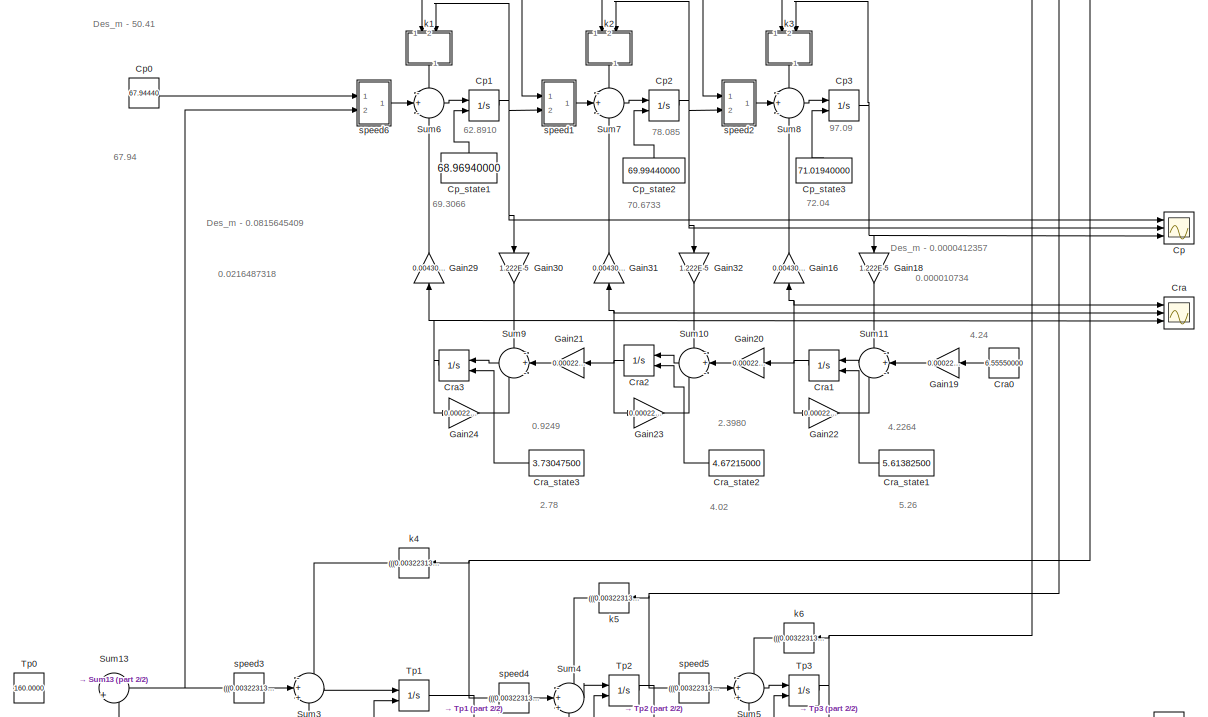
[diagram: root canvas - part 1/2, full width, middle band]
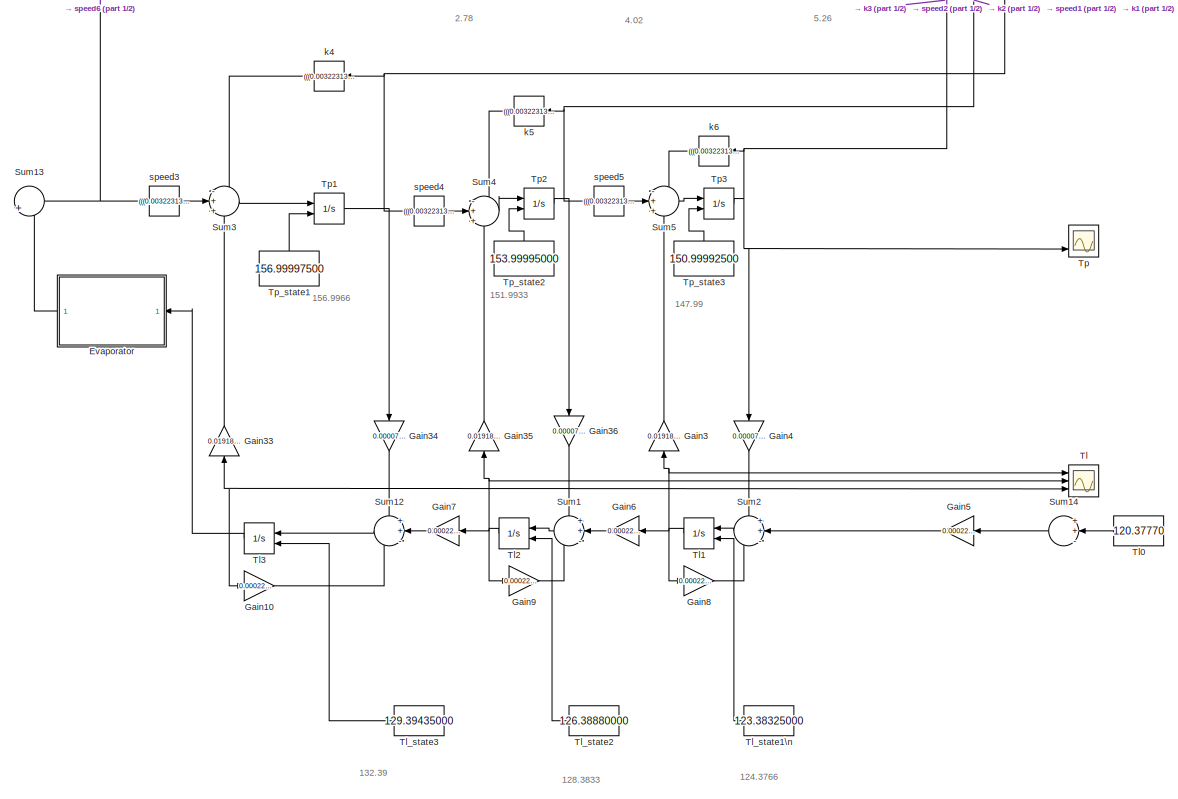
[diagram: root canvas - part 2/2, full width, bottom band]
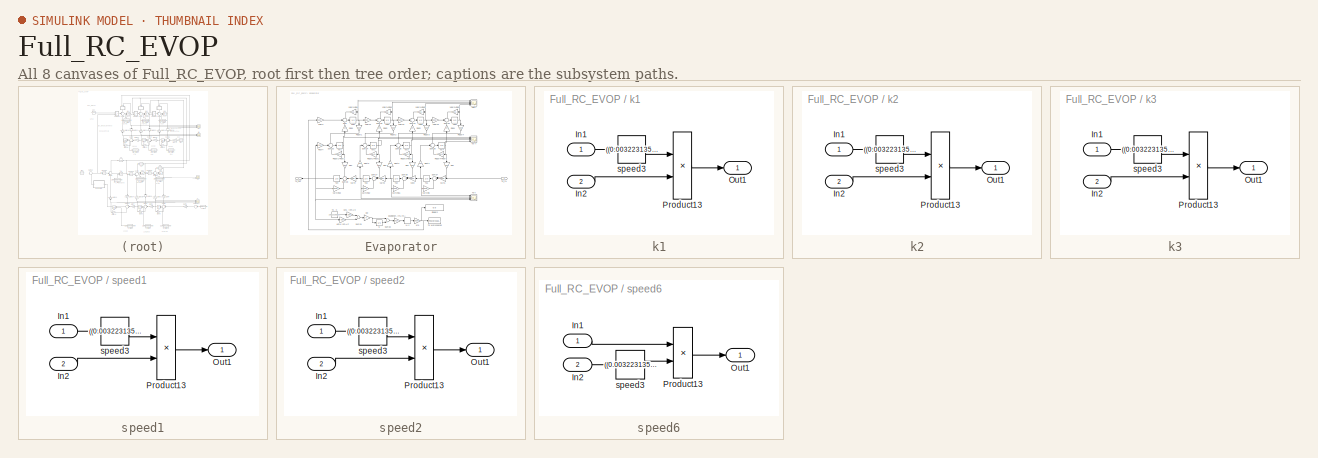
[diagram: thumbnail index - all 8 canvases of the model, root first then tree order]
MODEL Full_RC_EVOP
KIND model
BLOCK [Scope] Cp
  Floating = off
  NumInputPorts = 3
  Ports = [3]
  SID = 236
  ScopeSpecificationString = C++SS(StrPVP('Location','[5, 49, 1371, 737]'),StrPVP('Open','off'),StrPVP('ZoomMode','xonly'),MxPVP('AxesTitles',53,'struct(''axes1'',''%<SignalLabel>'',''axes2'',''%<SignalLabel>'',''axes3'',''%<SignalLabel>'')'),MxPVP('ScopeGraphics',56,'struct(''FigureColor'',''[0.501960784313725 0.501960784313725 0.501960784313725]'',''AxesColor'',''[0 0 0]'',''AxesTickColor'',''[1 1 1]'',''LineColors'',''[1 1...<+468ch>
BLOCK [Constant] Cp0
  SID = 237
  Value = 67.94440
BLOCK [Integrator] Cp1
  InitialCondition = 69.3066
  InitialConditionSource = external
  Ports = [2, 1]
  SID = 238
BLOCK [Integrator] Cp2
  InitialCondition = 70.6733
  InitialConditionSource = external
  Ports = [2, 1]
  SID = 239
BLOCK [Integrator] Cp3
  InitialCondition = 72.04
  InitialConditionSource = external
  Ports = [2, 1]
  SID = 240
BLOCK [Constant] Cp_state1
  SID = 443
  Value = 68.96940000
BLOCK [Constant] Cp_state2
  SID = 445
  Value = 69.99440000
BLOCK [Constant] Cp_state3
  SID = 446
  Value = 71.01940000
BLOCK [Scope] Cra
  Floating = off
  NumInputPorts = 3
  Ports = [3]
  SID = 241
  ScopeSpecificationString = C++SS(StrPVP('Location','[5, 49, 1371, 737]'),StrPVP('Open','off'),StrPVP('ZoomMode','xonly'),MxPVP('AxesTitles',53,'struct(''axes1'',''%<SignalLabel>'',''axes2'',''%<SignalLabel>'',''axes3'',''%<SignalLabel>'')'),MxPVP('ScopeGraphics',56,'struct(''FigureColor'',''[0.5 0.5 0.5]'',''AxesColor'',''[0 0 0]'',''AxesTickColor'',''[1 1 1]'',''LineColors'',''[1 1 0;1 0 1;0 1 1;1 0 0;0 1 0;0 0 1]'',''Line...<+439ch>
BLOCK [Constant] Cra0
  SID = 242
  Value = 6.55550000
BLOCK [Integrator] Cra1
  InitialCondition = 5.26
  InitialConditionSource = external
  Ports = [2, 1]
  SID = 243
BLOCK [Integrator] Cra2
  InitialCondition = 4.02
  InitialConditionSource = external
  Ports = [2, 1]
  SID = 244
BLOCK [Integrator] Cra3
  InitialCondition = 2.78
  InitialConditionSource = external
  Ports = [2, 1]
  SID = 245
BLOCK [Constant] Cra_state1
  SID = 449
  Value = 5.61382500
BLOCK [Constant] Cra_state2
  SID = 450
  Value = 4.67215000
BLOCK [Constant] Cra_state3
  SID = 451
  Value = 3.73047500
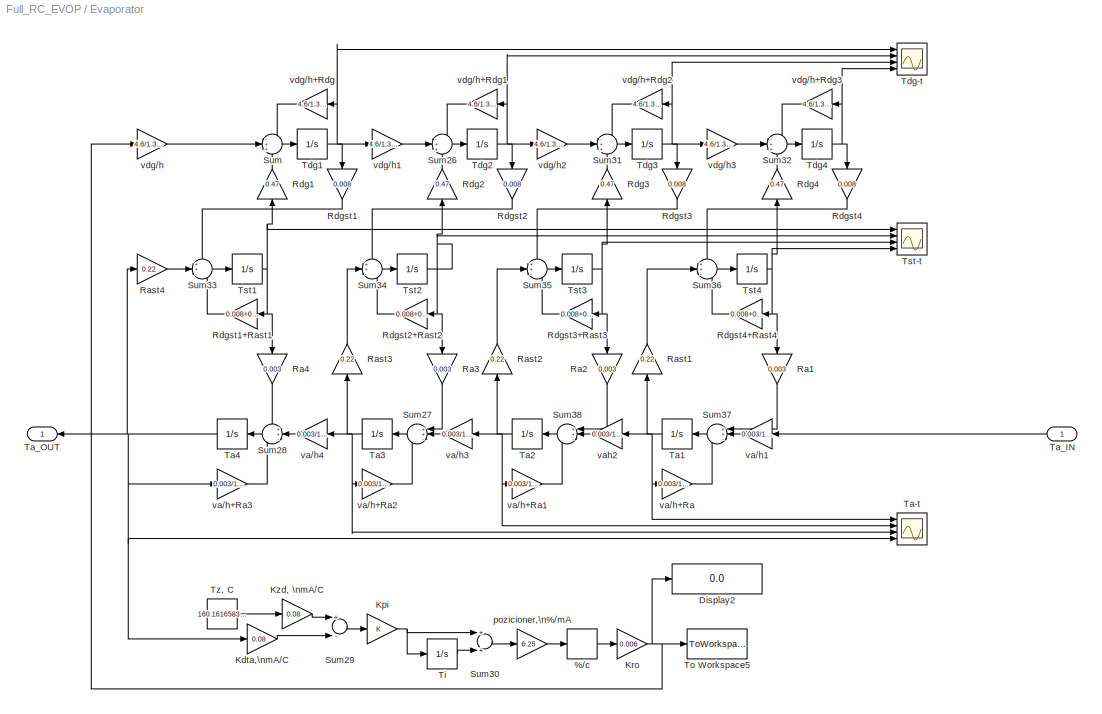
BLOCK [SubSystem] Evaporator
  Ports = [1, 1]
  RequestExecContextInheritance = off
  SID = 246
BLOCK [RateLimiter] Evaporator/%//c
  FallingSlewLimit = -5
  RisingSlewLimit = 5
  SID = 248
  SampleTimeMode = inherited
BLOCK [Display] Evaporator/Display2
  Decimation = 1
  Ports = [1]
  SID = 249
BLOCK [Gain] Evaporator/Kdta,\nmA//C
  Gain = 0.08
  OutDataTypeStr = Inherit: Inherit via internal rule
  ParamDataTypeStr = Inherit: Inherit via internal rule
  SID = 250
  SaturateOnIntegerOverflow = off
BLOCK [Gain] Evaporator/Kpi
  OutDataTypeStr = Inherit: Inherit via internal rule
  ParamDataTypeStr = Inherit: Inherit via internal rule
  SID = 251
  SaturateOnIntegerOverflow = off
BLOCK [Gain] Evaporator/Kro
  Gain = 0.006
  OutDataTypeStr = Inherit: Inherit via internal rule
  ParamDataTypeStr = Inherit: Inherit via internal rule
  SID = 252
  SaturateOnIntegerOverflow = off
BLOCK [Gain] Evaporator/Kzd, \nmA//C
  Gain = 0.08
  OutDataTypeStr = Inherit: Inherit via internal rule
  ParamDataTypeStr = Inherit: Inherit via internal rule
  SID = 253
  SaturateOnIntegerOverflow = off
BLOCK [Gain] Evaporator/Ra1
  Gain = 0.003
  OutDataTypeStr = Inherit: Inherit via internal rule
  ParamDataTypeStr = Inherit: Inherit via internal rule
  SID = 254
  SaturateOnIntegerOverflow = off
BLOCK [Gain] Evaporator/Ra2
  Gain = 0.003
  OutDataTypeStr = Inherit: Inherit via internal rule
  ParamDataTypeStr = Inherit: Inherit via internal rule
  SID = 255
  SaturateOnIntegerOverflow = off
BLOCK [Gain] Evaporator/Ra3
  Gain = 0.003
  OutDataTypeStr = Inherit: Inherit via internal rule
  ParamDataTypeStr = Inherit: Inherit via internal rule
  SID = 256
  SaturateOnIntegerOverflow = off
BLOCK [Gain] Evaporator/Ra4
  Gain = 0.003
  OutDataTypeStr = Inherit: Inherit via internal rule
  ParamDataTypeStr = Inherit: Inherit via internal rule
  SID = 257
  SaturateOnIntegerOverflow = off
BLOCK [Gain] Evaporator/Rast1
  Gain = 0.22
  OutDataTypeStr = Inherit: Inherit via internal rule
  ParamDataTypeStr = Inherit: Inherit via internal rule
  SID = 258
  SaturateOnIntegerOverflow = off
BLOCK [Gain] Evaporator/Rast2
  Gain = 0.22
  OutDataTypeStr = Inherit: Inherit via internal rule
  ParamDataTypeStr = Inherit: Inherit via internal rule
  SID = 259
  SaturateOnIntegerOverflow = off
BLOCK [Gain] Evaporator/Rast3
  Gain = 0.22
  OutDataTypeStr = Inherit: Inherit via internal rule
  ParamDataTypeStr = Inherit: Inherit via internal rule
  SID = 260
  SaturateOnIntegerOverflow = off
BLOCK [Gain] Evaporator/Rast4
  Gain = 0.22
  OutDataTypeStr = Inherit: Inherit via internal rule
  ParamDataTypeStr = Inherit: Inherit via internal rule
  SID = 261
  SaturateOnIntegerOverflow = off
BLOCK [Gain] Evaporator/Rdg1
  Gain = 0.47
  OutDataTypeStr = Inherit: Inherit via internal rule
  ParamDataTypeStr = Inherit: Inherit via internal rule
  SID = 262
  SaturateOnIntegerOverflow = off
BLOCK [Gain] Evaporator/Rdg2
  Gain = 0.47
  OutDataTypeStr = Inherit: Inherit via internal rule
  ParamDataTypeStr = Inherit: Inherit via internal rule
  SID = 263
  SaturateOnIntegerOverflow = off
BLOCK [Gain] Evaporator/Rdg3
  Gain = 0.47
  OutDataTypeStr = Inherit: Inherit via internal rule
  ParamDataTypeStr = Inherit: Inherit via internal rule
  SID = 264
  SaturateOnIntegerOverflow = off
BLOCK [Gain] Evaporator/Rdg4
  Gain = 0.47
  OutDataTypeStr = Inherit: Inherit via internal rule
  ParamDataTypeStr = Inherit: Inherit via internal rule
  SID = 265
  SaturateOnIntegerOverflow = off
BLOCK [Gain] Evaporator/Rdgst1
  Gain = 0.008
  OutDataTypeStr = Inherit: Inherit via internal rule
  ParamDataTypeStr = Inherit: Inherit via internal rule
  SID = 266
  SaturateOnIntegerOverflow = off
BLOCK [Gain] Evaporator/Rdgst1+Rast1
  Gain = 0.008+0.22
  OutDataTypeStr = Inherit: Inherit via internal rule
  ParamDataTypeStr = Inherit: Inherit via internal rule
  SID = 267
  SaturateOnIntegerOverflow = off
BLOCK [Gain] Evaporator/Rdgst2
  Gain = 0.008
  OutDataTypeStr = Inherit: Inherit via internal rule
  ParamDataTypeStr = Inherit: Inherit via internal rule
  SID = 268
  SaturateOnIntegerOverflow = off
BLOCK [Gain] Evaporator/Rdgst2+Rast2
  Gain = 0.008+0.22
  OutDataTypeStr = Inherit: Inherit via internal rule
  ParamDataTypeStr = Inherit: Inherit via internal rule
  SID = 269
  SaturateOnIntegerOverflow = off
BLOCK [Gain] Evaporator/Rdgst3
  Gain = 0.008
  OutDataTypeStr = Inherit: Inherit via internal rule
  ParamDataTypeStr = Inherit: Inherit via internal rule
  SID = 270
  SaturateOnIntegerOverflow = off
BLOCK [Gain] Evaporator/Rdgst3+Rast3
  Gain = 0.008+0.22
  OutDataTypeStr = Inherit: Inherit via internal rule
  ParamDataTypeStr = Inherit: Inherit via internal rule
  SID = 271
  SaturateOnIntegerOverflow = off
BLOCK [Gain] Evaporator/Rdgst4
  Gain = 0.008
  OutDataTypeStr = Inherit: Inherit via internal rule
  ParamDataTypeStr = Inherit: Inherit via internal rule
  SID = 272
  SaturateOnIntegerOverflow = off
BLOCK [Gain] Evaporator/Rdgst4+Rast4
  Gain = 0.008+0.22
  OutDataTypeStr = Inherit: Inherit via internal rule
  ParamDataTypeStr = Inherit: Inherit via internal rule
  SID = 273
  SaturateOnIntegerOverflow = off
BLOCK [Sum] Evaporator/Sum
  IconShape = round
  InputSameDT = off
  Inputs = -++
  OutDataTypeStr = Inherit: Inherit via internal rule
  Ports = [3, 1]
  SID = 274
  SaturateOnIntegerOverflow = off
BLOCK [Sum] Evaporator/Sum26
  IconShape = round
  InputSameDT = off
  Inputs = -++
  OutDataTypeStr = Inherit: Inherit via internal rule
  Ports = [3, 1]
  SID = 275
  SaturateOnIntegerOverflow = off
BLOCK [Sum] Evaporator/Sum27
  IconShape = round
  InputSameDT = off
  Inputs = ++-
  OutDataTypeStr = Inherit: Inherit via internal rule
  Ports = [3, 1]
  SID = 276
  SaturateOnIntegerOverflow = off
BLOCK [Sum] Evaporator/Sum28
  IconShape = round
  InputSameDT = off
  Inputs = ++-
  OutDataTypeStr = Inherit: Inherit via internal rule
  Ports = [3, 1]
  SID = 277
  SaturateOnIntegerOverflow = off
BLOCK [Sum] Evaporator/Sum29
  InputSameDT = off
  Inputs = +-
  OutDataTypeStr = Inherit: Inherit via internal rule
  Ports = [2, 1]
  SID = 278
  SaturateOnIntegerOverflow = off
BLOCK [Sum] Evaporator/Sum30
  InputSameDT = off
  OutDataTypeStr = Inherit: Inherit via internal rule
  Ports = [2, 1]
  SID = 279
  SaturateOnIntegerOverflow = off
BLOCK [Sum] Evaporator/Sum31
  IconShape = round
  InputSameDT = off
  Inputs = -++
  OutDataTypeStr = Inherit: Inherit via internal rule
  Ports = [3, 1]
  SID = 280
  SaturateOnIntegerOverflow = off
BLOCK [Sum] Evaporator/Sum32
  IconShape = round
  InputSameDT = off
  Inputs = -++
  OutDataTypeStr = Inherit: Inherit via internal rule
  Ports = [3, 1]
  SID = 281
  SaturateOnIntegerOverflow = off
BLOCK [Sum] Evaporator/Sum33
  IconShape = round
  InputSameDT = off
  Inputs = ++-
  OutDataTypeStr = Inherit: Inherit via internal rule
  Ports = [3, 1]
  SID = 282
  SaturateOnIntegerOverflow = off
BLOCK [Sum] Evaporator/Sum34
  IconShape = round
  InputSameDT = off
  Inputs = ++-
  OutDataTypeStr = Inherit: Inherit via internal rule
  Ports = [3, 1]
  SID = 283
  SaturateOnIntegerOverflow = off
BLOCK [Sum] Evaporator/Sum35
  IconShape = round
  InputSameDT = off
  Inputs = ++-
  OutDataTypeStr = Inherit: Inherit via internal rule
  Ports = [3, 1]
  SID = 284
  SaturateOnIntegerOverflow = off
BLOCK [Sum] Evaporator/Sum36
  IconShape = round
  InputSameDT = off
  Inputs = ++-
  OutDataTypeStr = Inherit: Inherit via internal rule
  Ports = [3, 1]
  SID = 285
  SaturateOnIntegerOverflow = off
BLOCK [Sum] Evaporator/Sum37
  IconShape = round
  InputSameDT = off
  Inputs = ++-
  OutDataTypeStr = Inherit: Inherit via internal rule
  Ports = [3, 1]
  SID = 286
  SaturateOnIntegerOverflow = off
BLOCK [Sum] Evaporator/Sum38
  IconShape = round
  InputSameDT = off
  Inputs = ++-
  OutDataTypeStr = Inherit: Inherit via internal rule
  Ports = [3, 1]
  SID = 287
  SaturateOnIntegerOverflow = off
BLOCK [Scope] Evaporator/Ta-t
  Floating = off
  NumInputPorts = 4
  Ports = [4]
  SID = 288
  ScopeSpecificationString = C++SS(StrPVP('Location','[999, 167, 1323, 671]'),StrPVP('Open','off'),MxPVP('AxesTitles',53,'struct(''axes1'',''%<SignalLabel>'',''axes2'',''%<SignalLabel>'',''axes3'',''%<SignalLabel>'',''axes4'',''%<SignalLabel>'')'),MxPVP('ScopeGraphics',56,'struct(''FigureColor'',''[0.5 0.5 0.5]'',''AxesColor'',''[0 0 0]'',''AxesTickColor'',''[1 1 1]'',''LineColors'',''[1 1 0;1 0 1;0 1 1;1 0 0;0 1 0;0 0 1]'','...<+421ch>
BLOCK [Integrator] Evaporator/Ta1
  InitialCondition = 136.285
  Ports = [1, 1]
  SID = 289
BLOCK [Integrator] Evaporator/Ta2
  InitialCondition = 144.19
  Ports = [1, 1]
  SID = 290
BLOCK [Integrator] Evaporator/Ta3
  InitialCondition = 152.09
  Ports = [1, 1]
  SID = 291
BLOCK [Integrator] Evaporator/Ta4
  InitialCondition = 160
  Ports = [1, 1]
  SID = 292
BLOCK [Inport] Evaporator/Ta_IN
  IconDisplay = Port number
  SID = 247
BLOCK [Outport] Evaporator/Ta_OUT
  IconDisplay = Port number
  SID = 323
BLOCK [Scope] Evaporator/Tdg-t
  Floating = off
  NumInputPorts = 4
  Ports = [4]
  SID = 293
  ScopeSpecificationString = C++SS(StrPVP('Location','[886, 169, 1210, 673]'),StrPVP('Open','off'),MxPVP('AxesTitles',53,'struct(''axes1'',''%<SignalLabel>'',''axes2'',''%<SignalLabel>'',''axes3'',''%<SignalLabel>'',''axes4'',''%<SignalLabel>'')'),MxPVP('ScopeGraphics',56,'struct(''FigureColor'',''[0.5 0.5 0.5]'',''AxesColor'',''[0 0 0]'',''AxesTickColor'',''[1 1 1]'',''LineColors'',''[1 1 0;1 0 1;0 1 1;1 0 0;0 1 0;0 0 1]'','...<+415ch>
BLOCK [Integrator] Evaporator/Tdg1
  InitialCondition = 283.3065209436467
  Ports = [1, 1]
  SID = 294
BLOCK [Integrator] Evaporator/Tdg2
  InitialCondition = 267.8966165589237
  Ports = [1, 1]
  SID = 295
BLOCK [Integrator] Evaporator/Tdg3
  InitialCondition = 253.6715917846216
  Ports = [1, 1]
  SID = 296
BLOCK [Integrator] Evaporator/Tdg4
  InitialCondition = 240.5403403000344
  Ports = [1, 1]
  SID = 297
BLOCK [Integrator] Evaporator/Ti
  InitialCondition = 8000
  LowerSaturationLimit = 6012
  Ports = [1, 1]
  SID = 298
  UpperSaturationLimit = 8012
BLOCK [ToWorkspace] Evaporator/To Workspace5
  MaxDataPoints = inf
  Ports = [1]
  SID = 299
  SampleTime = -1
  VariableName = Tdg0
BLOCK [Scope] Evaporator/Tst-t
  Floating = off
  NumInputPorts = 4
  Ports = [4]
  SID = 300
  ScopeSpecificationString = C++SS(StrPVP('Location','[368, 90, 692, 594]'),StrPVP('Open','off'),MxPVP('AxesTitles',53,'struct(''axes1'',''%<SignalLabel>'',''axes2'',''%<SignalLabel>'',''axes3'',''%<SignalLabel>'',''axes4'',''%<SignalLabel>'')'),MxPVP('ScopeGraphics',56,'struct(''FigureColor'',''[0.5 0.5 0.5]'',''AxesColor'',''[0 0 0]'',''AxesTickColor'',''[1 1 1]'',''LineColors'',''[1 1 0;1 0 1;0 1 1;1 0 0;0 1 0;0 0 1]'',''L...<+413ch>
BLOCK [Integrator] Evaporator/Tst1
  InitialCondition = 164.4825307550351
  Ports = [1, 1]
  SID = 301
BLOCK [Integrator] Evaporator/Tst2
  InitialCondition = 158.2090959868120
  Ports = [1, 1]
  SID = 302
BLOCK [Integrator] Evaporator/Tst3
  InitialCondition = 152.4180305285302
  Ports = [1, 1]
  SID = 303
BLOCK [Integrator] Evaporator/Tst4
  InitialCondition = 147.0722446263660
  Ports = [1, 1]
  SID = 304
BLOCK [Constant] Evaporator/Tz, C
  SID = 305
  Value = 160.1616583845354
BLOCK [Gain] Evaporator/pozicioner,\n%//mA
  Gain = 6.25
  OutDataTypeStr = Inherit: Inherit via internal rule
  ParamDataTypeStr = Inherit: Inherit via internal rule
  SID = 306
  SaturateOnIntegerOverflow = off
BLOCK [Gain] Evaporator/va//h+Ra
  Gain = 0.003/1.375+0.003
  OutDataTypeStr = Inherit: Inherit via internal rule
  ParamDataTypeStr = Inherit: Inherit via internal rule
  SID = 307
  SaturateOnIntegerOverflow = off
BLOCK [Gain] Evaporator/va//h+Ra1
  Gain = 0.003/1.375+0.003
  OutDataTypeStr = Inherit: Inherit via internal rule
  ParamDataTypeStr = Inherit: Inherit via internal rule
  SID = 308
  SaturateOnIntegerOverflow = off
BLOCK [Gain] Evaporator/va//h+Ra2
  Gain = 0.003/1.375+0.003
  OutDataTypeStr = Inherit: Inherit via internal rule
  ParamDataTypeStr = Inherit: Inherit via internal rule
  SID = 309
  SaturateOnIntegerOverflow = off
BLOCK [Gain] Evaporator/va//h+Ra3
  Gain = 0.003/1.375+0.003
  OutDataTypeStr = Inherit: Inherit via internal rule
  ParamDataTypeStr = Inherit: Inherit via internal rule
  SID = 310
  SaturateOnIntegerOverflow = off
BLOCK [Gain] Evaporator/va//h1
  Gain = 0.003/1.375
  OutDataTypeStr = Inherit: Inherit via internal rule
  ParamDataTypeStr = Inherit: Inherit via internal rule
  SID = 311
  SaturateOnIntegerOverflow = off
BLOCK [Gain] Evaporator/va//h3
  Gain = 0.003/1.375
  OutDataTypeStr = Inherit: Inherit via internal rule
  ParamDataTypeStr = Inherit: Inherit via internal rule
  SID = 312
  SaturateOnIntegerOverflow = off
BLOCK [Gain] Evaporator/va//h4
  Gain = 0.003/1.375
  OutDataTypeStr = Inherit: Inherit via internal rule
  ParamDataTypeStr = Inherit: Inherit via internal rule
  SID = 313
  SaturateOnIntegerOverflow = off
BLOCK [Gain] Evaporator/vah2
  Gain = 0.003/1.375
  OutDataTypeStr = Inherit: Inherit via internal rule
  ParamDataTypeStr = Inherit: Inherit via internal rule
  SID = 314
  SaturateOnIntegerOverflow = off
BLOCK [Gain] Evaporator/vdg//h
  Gain = 4.6/1.375
  OutDataTypeStr = Inherit: Inherit via internal rule
  ParamDataTypeStr = Inherit: Inherit via internal rule
  SID = 315
  SaturateOnIntegerOverflow = off
BLOCK [Gain] Evaporator/vdg//h+Rdg
  Gain = 4.6/1.375+0.47
  OutDataTypeStr = Inherit: Inherit via internal rule
  ParamDataTypeStr = Inherit: Inherit via internal rule
  SID = 316
  SaturateOnIntegerOverflow = off
BLOCK [Gain] Evaporator/vdg//h+Rdg1
  Gain = 4.6/1.375+0.47
  OutDataTypeStr = Inherit: Inherit via internal rule
  ParamDataTypeStr = Inherit: Inherit via internal rule
  SID = 317
  SaturateOnIntegerOverflow = off
BLOCK [Gain] Evaporator/vdg//h+Rdg2
  Gain = 4.6/1.375+0.47
  OutDataTypeStr = Inherit: Inherit via internal rule
  ParamDataTypeStr = Inherit: Inherit via internal rule
  SID = 318
  SaturateOnIntegerOverflow = off
BLOCK [Gain] Evaporator/vdg//h+Rdg3
  Gain = 4.6/1.375+0.47
  OutDataTypeStr = Inherit: Inherit via internal rule
  ParamDataTypeStr = Inherit: Inherit via internal rule
  SID = 319
  SaturateOnIntegerOverflow = off
BLOCK [Gain] Evaporator/vdg//h1
  Gain = 4.6/1.375
  OutDataTypeStr = Inherit: Inherit via internal rule
  ParamDataTypeStr = Inherit: Inherit via internal rule
  SID = 320
  SaturateOnIntegerOverflow = off
BLOCK [Gain] Evaporator/vdg//h2
  Gain = 4.6/1.375
  OutDataTypeStr = Inherit: Inherit via internal rule
  ParamDataTypeStr = Inherit: Inherit via internal rule
  SID = 321
  SaturateOnIntegerOverflow = off
BLOCK [Gain] Evaporator/vdg//h3
  Gain = 4.6/1.375
  OutDataTypeStr = Inherit: Inherit via internal rule
  ParamDataTypeStr = Inherit: Inherit via internal rule
  SID = 322
  SaturateOnIntegerOverflow = off
BLOCK [Gain] Gain10
  Gain = 0.0002291314/0.5+0.0000777
  OutDataTypeStr = Inherit: Inherit via internal rule
  ParamDataTypeStr = Inherit: Inherit via internal rule
  SID = 326
  SaturateOnIntegerOverflow = off
BLOCK [Gain] Gain16
  Gain = 0.004302*10^(-9)
  OutDataTypeStr = Inherit: Inherit via internal rule
  ParamDataTypeStr = Inherit: Inherit via internal rule
  SID = 327
  SaturateOnIntegerOverflow = off
BLOCK [Gain] Gain18
  Gain = 1.222E-5
  OutDataTypeStr = Inherit: Inherit via internal rule
  ParamDataTypeStr = Inherit: Inherit via internal rule
  SID = 328
  SaturateOnIntegerOverflow = off
BLOCK [Gain] Gain19
  Gain = 0.0002291314/0.5
  OutDataTypeStr = Inherit: Inherit via internal rule
  ParamDataTypeStr = Inherit: Inherit via internal rule
  SID = 329
  SaturateOnIntegerOverflow = off
BLOCK [Gain] Gain20
  Gain = 0.0002291314/0.5
  OutDataTypeStr = Inherit: Inherit via internal rule
  ParamDataTypeStr = Inherit: Inherit via internal rule
  SID = 330
  SaturateOnIntegerOverflow = off
BLOCK [Gain] Gain21
  Gain = 0.0002291314/0.5
  OutDataTypeStr = Inherit: Inherit via internal rule
  ParamDataTypeStr = Inherit: Inherit via internal rule
  SID = 331
  SaturateOnIntegerOverflow = off
BLOCK [Gain] Gain22
  Gain = 0.0002291314/0.5-(1.222E-5)*10^(-9)
  OutDataTypeStr = Inherit: Inherit via internal rule
  ParamDataTypeStr = Inherit: Inherit via internal rule
  SID = 332
  SaturateOnIntegerOverflow = off
BLOCK [Gain] Gain23
  Gain = 0.0002291314/0.5-(1.222E-5)*10^(-9)
  OutDataTypeStr = Inherit: Inherit via internal rule
  ParamDataTypeStr = Inherit: Inherit via internal rule
  SID = 333
  SaturateOnIntegerOverflow = off
BLOCK [Gain] Gain24
  Gain = 0.0002291314/0.5-(1.222E-5)*10^(-9)
  OutDataTypeStr = Inherit: Inherit via internal rule
  ParamDataTypeStr = Inherit: Inherit via internal rule
  SID = 334
  SaturateOnIntegerOverflow = off
BLOCK [Gain] Gain29
  Gain = 0.004302*10^(-9)
  OutDataTypeStr = Inherit: Inherit via internal rule
  ParamDataTypeStr = Inherit: Inherit via internal rule
  SID = 335
  SaturateOnIntegerOverflow = off
BLOCK [Gain] Gain3
  Gain = 0.0191806
  OutDataTypeStr = Inherit: Inherit via internal rule
  ParamDataTypeStr = Inherit: Inherit via internal rule
  SID = 336
  SaturateOnIntegerOverflow = off
BLOCK [Gain] Gain30
  Gain = 1.222E-5
  OutDataTypeStr = Inherit: Inherit via internal rule
  ParamDataTypeStr = Inherit: Inherit via internal rule
  SID = 337
  SaturateOnIntegerOverflow = off
BLOCK [Gain] Gain31
  Gain = 0.004302*10^(-9)
  OutDataTypeStr = Inherit: Inherit via internal rule
  ParamDataTypeStr = Inherit: Inherit via internal rule
  SID = 338
  SaturateOnIntegerOverflow = off
BLOCK [Gain] Gain32
  Gain = 1.222E-5
  OutDataTypeStr = Inherit: Inherit via internal rule
  ParamDataTypeStr = Inherit: Inherit via internal rule
  SID = 339
  SaturateOnIntegerOverflow = off
BLOCK [Gain] Gain33
  Gain = 0.0191806
  OutDataTypeStr = Inherit: Inherit via internal rule
  ParamDataTypeStr = Inherit: Inherit via internal rule
  SID = 340
  SaturateOnIntegerOverflow = off
BLOCK [Gain] Gain34
  Gain = 0.0000777
  OutDataTypeStr = Inherit: Inherit via internal rule
  ParamDataTypeStr = Inherit: Inherit via internal rule
  SID = 341
  SaturateOnIntegerOverflow = off
BLOCK [Gain] Gain35
  Gain = 0.0191806
  OutDataTypeStr = Inherit: Inherit via internal rule
  ParamDataTypeStr = Inherit: Inherit via internal rule
  SID = 342
  SaturateOnIntegerOverflow = off
BLOCK [Gain] Gain36
  Gain = 0.0000777
  OutDataTypeStr = Inherit: Inherit via internal rule
  ParamDataTypeStr = Inherit: Inherit via internal rule
  SID = 343
  SaturateOnIntegerOverflow = off
BLOCK [Gain] Gain4
  Gain = 0.0000777
  OutDataTypeStr = Inherit: Inherit via internal rule
  ParamDataTypeStr = Inherit: Inherit via internal rule
  SID = 344
  SaturateOnIntegerOverflow = off
BLOCK [Gain] Gain5
  Gain = 0.0002291314/0.5
  OutDataTypeStr = Inherit: Inherit via internal rule
  ParamDataTypeStr = Inherit: Inherit via internal rule
  SID = 345
  SaturateOnIntegerOverflow = off
BLOCK [Gain] Gain6
  Gain = 0.0002291314/0.5
  OutDataTypeStr = Inherit: Inherit via internal rule
  ParamDataTypeStr = Inherit: Inherit via internal rule
  SID = 346
  SaturateOnIntegerOverflow = off
BLOCK [Gain] Gain7
  Gain = 0.0002291314/0.5
  OutDataTypeStr = Inherit: Inherit via internal rule
  ParamDataTypeStr = Inherit: Inherit via internal rule
  SID = 347
  SaturateOnIntegerOverflow = off
BLOCK [Gain] Gain8
  Gain = 0.0002291314/0.5+0.0000777
  OutDataTypeStr = Inherit: Inherit via internal rule
  ParamDataTypeStr = Inherit: Inherit via internal rule
  SID = 348
  SaturateOnIntegerOverflow = off
BLOCK [Gain] Gain9
  Gain = 0.0002291314/0.5+0.0000777
  OutDataTypeStr = Inherit: Inherit via internal rule
  ParamDataTypeStr = Inherit: Inherit via internal rule
  SID = 349
  SaturateOnIntegerOverflow = off
BLOCK [Sum] Sum1
  IconShape = round
  InputSameDT = off
  Inputs = ++-
  OutDataTypeStr = Inherit: Inherit via internal rule
  Ports = [3, 1]
  SID = 351
  SaturateOnIntegerOverflow = off
BLOCK [Sum] Sum10
  IconShape = round
  InputSameDT = off
  Inputs = -+-
  OutDataTypeStr = Inherit: Inherit via internal rule
  Ports = [3, 1]
  SID = 352
  SaturateOnIntegerOverflow = off
BLOCK [Sum] Sum11
  IconShape = round
  InputSameDT = off
  Inputs = -+-
  OutDataTypeStr = Inherit: Inherit via internal rule
  Ports = [3, 1]
  SID = 353
  SaturateOnIntegerOverflow = off
BLOCK [Sum] Sum12
  IconShape = round
  InputSameDT = off
  Inputs = ++-
  OutDataTypeStr = Inherit: Inherit via internal rule
  Ports = [3, 1]
  SID = 354
  SaturateOnIntegerOverflow = off
BLOCK [Sum] Sum13
  IconShape = round
  InputSameDT = off
  Inputs = |++
  OutDataTypeStr = Inherit: Inherit via internal rule
  Ports = [2, 1]
  SID = 355
  SaturateOnIntegerOverflow = off
BLOCK [Sum] Sum14
  IconShape = round
  InputSameDT = off
  Inputs = ++-
  OutDataTypeStr = Inherit: Inherit via internal rule
  Ports = [3, 1]
  SID = 356
  SaturateOnIntegerOverflow = off
BLOCK [Sum] Sum2
  IconShape = round
  InputSameDT = off
  Inputs = ++-
  OutDataTypeStr = Inherit: Inherit via internal rule
  Ports = [3, 1]
  SID = 358
  SaturateOnIntegerOverflow = off
BLOCK [Sum] Sum3
  IconShape = round
  InputSameDT = off
  Inputs = -++
  OutDataTypeStr = Inherit: Inherit via internal rule
  Ports = [3, 1]
  SID = 359
  SaturateOnIntegerOverflow = off
BLOCK [Sum] Sum4
  IconShape = round
  InputSameDT = off
  Inputs = -++
  OutDataTypeStr = Inherit: Inherit via internal rule
  Ports = [3, 1]
  SID = 360
  SaturateOnIntegerOverflow = off
BLOCK [Sum] Sum5
  IconShape = round
  InputSameDT = off
  Inputs = -++
  OutDataTypeStr = Inherit: Inherit via internal rule
  Ports = [3, 1]
  SID = 361
  SaturateOnIntegerOverflow = off
BLOCK [Sum] Sum6
  IconShape = round
  InputSameDT = off
  Inputs = -+-
  OutDataTypeStr = Inherit: Inherit via internal rule
  Ports = [3, 1]
  SID = 362
  SaturateOnIntegerOverflow = off
BLOCK [Sum] Sum7
  IconShape = round
  InputSameDT = off
  Inputs = -+-
  OutDataTypeStr = Inherit: Inherit via internal rule
  Ports = [3, 1]
  SID = 363
  SaturateOnIntegerOverflow = off
BLOCK [Sum] Sum8
  IconShape = round
  InputSameDT = off
  Inputs = -+-
  OutDataTypeStr = Inherit: Inherit via internal rule
  Ports = [3, 1]
  SID = 364
  SaturateOnIntegerOverflow = off
BLOCK [Sum] Sum9
  IconShape = round
  InputSameDT = off
  Inputs = -+-
  OutDataTypeStr = Inherit: Inherit via internal rule
  Ports = [3, 1]
  SID = 365
  SaturateOnIntegerOverflow = off
BLOCK [Scope] Tl
  Floating = off
  NumInputPorts = 3
  Ports = [3]
  SID = 366
  ScopeSpecificationString = Simulink.scopes.TimeScopeBlockCfg('CurrentConfiguration', extmgr.ConfigurationSet(extmgr.Configuration('Core','General UI',true),extmgr.Configuration('Core','Source UI',true),extmgr.Configuration('Sources','WiredSimulink',true,'DataLogging',true,'DataLoggingVariableName','TF_SM','DataLoggingSaveFormat','StructureWithTime','SampleTime','0','DataLoggingDecimation','1','DataLoggingDecimateData',true)...<+3051ch>
BLOCK [Constant] Tl0
  SID = 367
  Value = 120.37770
BLOCK [Integrator] Tl1
  InitialCondition = 124.3766
  InitialConditionSource = external
  Ports = [2, 1]
  SID = 368
BLOCK [Integrator] Tl2
  InitialCondition = 128.3833
  InitialConditionSource = external
  Ports = [2, 1]
  SID = 369
BLOCK [Integrator] Tl3
  InitialCondition = 132.39
  InitialConditionSource = external
  Ports = [2, 1]
  SID = 370
BLOCK [Constant] Tl_state1\n
  SID = 436
  Value = 123.38325000
BLOCK [Constant] Tl_state2
  SID = 437
  Value = 126.38880000
BLOCK [Constant] Tl_state3
  SID = 438
  Value = 129.39435000
BLOCK [Scope] Tp
  Floating = off
  NumInputPorts = 3
  Ports = [3]
  SID = 371
  ScopeSpecificationString = Simulink.scopes.TimeScopeBlockCfg('CurrentConfiguration', extmgr.ConfigurationSet(extmgr.Configuration('Core','General UI',true),extmgr.Configuration('Core','Source UI',true),extmgr.Configuration('Sources','WiredSimulink',true,'DataLogging',true,'DataLoggingVariableName','TV_SM','DataLoggingSaveFormat','StructureWithTime','SampleTime','0','DataLoggingDecimation','1','DataLoggingDecimateData',true)...<+3050ch>
BLOCK [Constant] Tp0
  SID = 372
  Value = 160.0000
BLOCK [Integrator] Tp1
  InitialCondition = 156.9966
  InitialConditionSource = external
  Ports = [2, 1]
  SID = 373
BLOCK [Integrator] Tp2
  InitialCondition = 151.9933
  InitialConditionSource = external
  Ports = [2, 1]
  SID = 374
BLOCK [Integrator] Tp3
  IgnoreLimit = on
  InitialCondition = 147.99
  InitialConditionSource = external
  Ports = [2, 1]
  SID = 375
BLOCK [Constant] Tp_state1
  SID = 428
  Value = 156.99997500
BLOCK [Constant] Tp_state2
  SID = 430
  Value = 153.99995000
BLOCK [Constant] Tp_state3
  SID = 431
  Value = 150.99992500
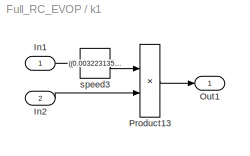
BLOCK [SubSystem] k1
  Ports = [2, 1]
  RequestExecContextInheritance = off
  SID = 376
BLOCK [Inport] k1/In1
  IconDisplay = Port number
  SID = 377
BLOCK [Inport] k1/In2
  IconDisplay = Port number
  Port = 2
  SID = 378
BLOCK [Outport] k1/Out1
  IconDisplay = Port number
  SID = 381
BLOCK [Product] k1/Product13
  Ports = [2, 1]
  RndMeth = Floor
  SID = 379
BLOCK [Fcn] k1/speed3
  Expr = ((0.003223135*(273+u))/24.69822264)/0.5-0.004302
  SID = 380
BLOCK [SubSystem] k2
  Ports = [2, 1]
  RequestExecContextInheritance = off
  SID = 382
BLOCK [Inport] k2/In1
  IconDisplay = Port number
  SID = 383
BLOCK [Inport] k2/In2
  IconDisplay = Port number
  Port = 2
  SID = 384
BLOCK [Outport] k2/Out1
  IconDisplay = Port number
  SID = 387
BLOCK [Product] k2/Product13
  Ports = [2, 1]
  RndMeth = Floor
  SID = 385
BLOCK [Fcn] k2/speed3
  Expr = ((0.003223135*(273+u))/24.69822264)/0.5-0.004302
  SID = 386
BLOCK [SubSystem] k3
  Ports = [2, 1]
  RequestExecContextInheritance = off
  SID = 388
BLOCK [Inport] k3/In1
  IconDisplay = Port number
  SID = 389
BLOCK [Inport] k3/In2
  IconDisplay = Port number
  Port = 2
  SID = 390
BLOCK [Outport] k3/Out1
  IconDisplay = Port number
  SID = 393
BLOCK [Product] k3/Product13
  Ports = [2, 1]
  RndMeth = Floor
  SID = 391
BLOCK [Fcn] k3/speed3
  Expr = ((0.003223135*(273+u))/24.69822264)/0.5-0.004302
  SID = 392
BLOCK [Fcn] k4
  Expr = (((0.003223135*(273+u))/24.69822264)/0.5+0.0191806)*u
  SID = 394
BLOCK [Fcn] k5
  Expr = (((0.003223135*(273+u))/24.69822264)/0.5+0.0191806)*u
  SID = 395
BLOCK [Fcn] k6
  Expr = (((0.003223135*(273+u))/24.69822264)/0.5+0.0191806)*u
  SID = 396
BLOCK [SubSystem] speed1
  Ports = [2, 1]
  RequestExecContextInheritance = off
  SID = 397
BLOCK [Inport] speed1/In1
  IconDisplay = Port number
  SID = 398
BLOCK [Inport] speed1/In2
  IconDisplay = Port number
  Port = 2
  SID = 399
BLOCK [Outport] speed1/Out1
  IconDisplay = Port number
  SID = 402
BLOCK [Product] speed1/Product13
  Ports = [2, 1]
  RndMeth = Floor
  SID = 400
BLOCK [Fcn] speed1/speed3
  Expr = ((0.003223135*(273+u))/24.69822264)/0.5
  SID = 401
BLOCK [SubSystem] speed2
  Ports = [2, 1]
  RequestExecContextInheritance = off
  SID = 403
BLOCK [Inport] speed2/In1
  IconDisplay = Port number
  SID = 404
BLOCK [Inport] speed2/In2
  IconDisplay = Port number
  Port = 2
  SID = 405
BLOCK [Outport] speed2/Out1
  IconDisplay = Port number
  SID = 408
BLOCK [Product] speed2/Product13
  Ports = [2, 1]
  RndMeth = Floor
  SID = 406
BLOCK [Fcn] speed2/speed3
  Expr = ((0.003223135*(273+u))/24.69822264)/0.5
  SID = 407
BLOCK [Fcn] speed3
  Expr = (((0.003223135*(273+u))/24.69822264)/0.5)*u
  SID = 409
BLOCK [Fcn] speed4
  Expr = (((0.003223135*(273+u))/24.69822264)/0.5)*u
  SID = 410
BLOCK [Fcn] speed5
  Expr = (((0.003223135*(273+u))/24.69822264)/0.5)*u
  SID = 411
BLOCK [SubSystem] speed6
  Ports = [2, 1]
  RequestExecContextInheritance = off
  SID = 412
BLOCK [Inport] speed6/In1
  IconDisplay = Port number
  SID = 413
BLOCK [Inport] speed6/In2
  IconDisplay = Port number
  Port = 2
  SID = 414
BLOCK [Outport] speed6/Out1
  IconDisplay = Port number
  SID = 417
BLOCK [Product] speed6/Product13
  Ports = [2, 1]
  RndMeth = Floor
  SID = 415
BLOCK [Fcn] speed6/speed3
  Expr = ((0.003223135*(273+u))/24.69822264)/0.5
  SID = 416
ANNOTATION (root): 0.000010734
ANNOTATION (root): 0.0216487318
ANNOTATION (root): 0.9249
ANNOTATION (root): 124.3766
ANNOTATION (root): 128.3833
ANNOTATION (root): 132.39
ANNOTATION (root): 147.99
ANNOTATION (root): 151.9933
ANNOTATION (root): 156.9966
ANNOTATION (root): 2.3980
ANNOTATION (root): 2.78
ANNOTATION (root): 4.02
ANNOTATION (root): 4.2264
ANNOTATION (root): 4.24
ANNOTATION (root): 5.26
ANNOTATION (root): 62.8910
ANNOTATION (root): 67.94
ANNOTATION (root): 69.3066
ANNOTATION (root): 70.6733
ANNOTATION (root): 72.04
ANNOTATION (root): 78.085
ANNOTATION (root): 97.09
ANNOTATION (root): Des_m - 0.0000412357
ANNOTATION (root): Des_m - 0.0815645409
ANNOTATION (root): Des_m - 50.41
LINE Cp0:1 -> speed6:1
NET Cp1:1 -> Cp:1, Gain30:1, k1:2, speed1:2
NET Cp2:1 -> Cp:2, Gain32:1, k2:2, speed2:2
NET Cp3:1 -> Cp:3, Gain18:1, k3:2
LINE Cp_state1:1 -> Cp1:2
LINE Cp_state2:1 -> Cp2:2
LINE Cp_state3:1 -> Cp3:2
LINE Cra0:1 -> Gain19:1
NET Cra1:1 -> Cra:1, Gain16:1, Gain20:1, Gain22:1
NET Cra2:1 -> Cra:2, Gain21:1, Gain23:1, Gain31:1
NET Cra3:1 -> Cra:3, Gain24:1, Gain29:1
LINE Cra_state1:1 -> Cra1:2
LINE Cra_state2:1 -> Cra2:2
LINE Cra_state3:1 -> Cra3:2
LINE Evaporator/%//c:1 -> Evaporator/Kro:1
LINE Evaporator/Kdta,\nmA//C:1 -> Evaporator/Sum29:2
NET Evaporator/Kpi:1 -> Evaporator/Sum30:1, Evaporator/Ti:1
NET Evaporator/Kro:1 -> Evaporator/Display2:1, Evaporator/To Workspace5:1, Evaporator/vdg//h:1
LINE Evaporator/Kzd, \nmA//C:1 -> Evaporator/Sum29:1
LINE Evaporator/Ra1:1 -> Evaporator/Sum37:1
LINE Evaporator/Ra2:1 -> Evaporator/Sum38:1
LINE Evaporator/Ra3:1 -> Evaporator/Sum27:1
LINE Evaporator/Ra4:1 -> Evaporator/Sum28:1
LINE Evaporator/Rast1:1 -> Evaporator/Sum36:2
LINE Evaporator/Rast2:1 -> Evaporator/Sum35:2
LINE Evaporator/Rast3:1 -> Evaporator/Sum34:2
LINE Evaporator/Rast4:1 -> Evaporator/Sum33:2
LINE Evaporator/Rdg1:1 -> Evaporator/Sum:3
LINE Evaporator/Rdg2:1 -> Evaporator/Sum26:3
LINE Evaporator/Rdg3:1 -> Evaporator/Sum31:3
LINE Evaporator/Rdg4:1 -> Evaporator/Sum32:3
LINE Evaporator/Rdgst1+Rast1:1 -> Evaporator/Sum33:3
LINE Evaporator/Rdgst1:1 -> Evaporator/Sum33:1
LINE Evaporator/Rdgst2+Rast2:1 -> Evaporator/Sum34:3
LINE Evaporator/Rdgst2:1 -> Evaporator/Sum34:1
LINE Evaporator/Rdgst3+Rast3:1 -> Evaporator/Sum35:3
LINE Evaporator/Rdgst3:1 -> Evaporator/Sum35:1
LINE Evaporator/Rdgst4+Rast4:1 -> Evaporator/Sum36:3
LINE Evaporator/Rdgst4:1 -> Evaporator/Sum36:1
LINE Evaporator/Sum26:1 -> Evaporator/Tdg2:1
LINE Evaporator/Sum27:1 -> Evaporator/Ta3:1
LINE Evaporator/Sum28:1 -> Evaporator/Ta4:1
LINE Evaporator/Sum29:1 -> Evaporator/Kpi:1
LINE Evaporator/Sum30:1 -> Evaporator/pozicioner,\n%//mA:1
LINE Evaporator/Sum31:1 -> Evaporator/Tdg3:1
LINE Evaporator/Sum32:1 -> Evaporator/Tdg4:1
LINE Evaporator/Sum33:1 -> Evaporator/Tst1:1
LINE Evaporator/Sum34:1 -> Evaporator/Tst2:1
LINE Evaporator/Sum35:1 -> Evaporator/Tst3:1
LINE Evaporator/Sum36:1 -> Evaporator/Tst4:1
LINE Evaporator/Sum37:1 -> Evaporator/Ta1:1
LINE Evaporator/Sum38:1 -> Evaporator/Ta2:1
LINE Evaporator/Sum:1 -> Evaporator/Tdg1:1
NET Evaporator/Ta1:1 -> Evaporator/Rast1:1, Evaporator/Ta-t:1, Evaporator/va//h+Ra:1, Evaporator/vah2:1
NET Evaporator/Ta2:1 -> Evaporator/Rast2:1, Evaporator/Ta-t:2, Evaporator/va//h+Ra1:1, Evaporator/va//h3:1
NET Evaporator/Ta3:1 -> Evaporator/Rast3:1, Evaporator/Ta-t:3, Evaporator/va//h+Ra2:1, Evaporator/va//h4:1
NET Evaporator/Ta4:1 -> Evaporator/Kdta,\nmA//C:1, Evaporator/Rast4:1, Evaporator/Ta-t:4, Evaporator/Ta_OUT:1, Evaporator/va//h+Ra3:1
LINE Evaporator/Ta_IN:1 -> Evaporator/va//h1:1
NET Evaporator/Tdg1:1 -> Evaporator/Rdgst1:1, Evaporator/Tdg-t:1, Evaporator/vdg//h+Rdg:1, Evaporator/vdg//h1:1
NET Evaporator/Tdg2:1 -> Evaporator/Rdgst2:1, Evaporator/Tdg-t:2, Evaporator/vdg//h+Rdg1:1, Evaporator/vdg//h2:1
NET Evaporator/Tdg3:1 -> Evaporator/Rdgst3:1, Evaporator/Tdg-t:3, Evaporator/vdg//h+Rdg2:1, Evaporator/vdg//h3:1
NET Evaporator/Tdg4:1 -> Evaporator/Rdgst4:1, Evaporator/Tdg-t:4, Evaporator/vdg//h+Rdg3:1
LINE Evaporator/Ti:1 -> Evaporator/Sum30:2
NET Evaporator/Tst1:1 -> Evaporator/Ra4:1, Evaporator/Rdg1:1, Evaporator/Rdgst1+Rast1:1, Evaporator/Tst-t:1
NET Evaporator/Tst2:1 -> Evaporator/Ra3:1, Evaporator/Rdg2:1, Evaporator/Rdgst2+Rast2:1, Evaporator/Tst-t:2
NET Evaporator/Tst3:1 -> Evaporator/Ra2:1, Evaporator/Rdg3:1, Evaporator/Rdgst3+Rast3:1, Evaporator/Tst-t:3
NET Evaporator/Tst4:1 -> Evaporator/Ra1:1, Evaporator/Rdg4:1, Evaporator/Rdgst4+Rast4:1, Evaporator/Tst-t:4
LINE Evaporator/Tz, C:1 -> Evaporator/Kzd, \nmA//C:1
LINE Evaporator/pozicioner,\n%//mA:1 -> Evaporator/%//c:1
LINE Evaporator/va//h+Ra1:1 -> Evaporator/Sum38:3
LINE Evaporator/va//h+Ra2:1 -> Evaporator/Sum27:3
LINE Evaporator/va//h+Ra3:1 -> Evaporator/Sum28:3
LINE Evaporator/va//h+Ra:1 -> Evaporator/Sum37:3
LINE Evaporator/va//h1:1 -> Evaporator/Sum37:2
LINE Evaporator/va//h3:1 -> Evaporator/Sum27:2
LINE Evaporator/va//h4:1 -> Evaporator/Sum28:2
LINE Evaporator/vah2:1 -> Evaporator/Sum38:2
LINE Evaporator/vdg//h+Rdg1:1 -> Evaporator/Sum26:1
LINE Evaporator/vdg//h+Rdg2:1 -> Evaporator/Sum31:1
LINE Evaporator/vdg//h+Rdg3:1 -> Evaporator/Sum32:1
LINE Evaporator/vdg//h+Rdg:1 -> Evaporator/Sum:1
LINE Evaporator/vdg//h1:1 -> Evaporator/Sum26:2
LINE Evaporator/vdg//h2:1 -> Evaporator/Sum31:2
LINE Evaporator/vdg//h3:1 -> Evaporator/Sum32:2
LINE Evaporator/vdg//h:1 -> Evaporator/Sum:2
LINE Evaporator:1 -> Sum13:2
LINE Gain10:1 -> Sum12:3
LINE Gain16:1 -> Sum8:3
LINE Gain18:1 -> Sum11:1
LINE Gain19:1 -> Sum11:2
LINE Gain20:1 -> Sum10:2
LINE Gain21:1 -> Sum9:2
LINE Gain22:1 -> Sum11:3
LINE Gain23:1 -> Sum10:3
LINE Gain24:1 -> Sum9:3
LINE Gain29:1 -> Sum6:3
LINE Gain30:1 -> Sum9:1
LINE Gain31:1 -> Sum7:3
LINE Gain32:1 -> Sum10:1
LINE Gain33:1 -> Sum3:3
LINE Gain34:1 -> Sum12:1
LINE Gain35:1 -> Sum4:3
LINE Gain36:1 -> Sum1:1
LINE Gain3:1 -> Sum5:3
LINE Gain4:1 -> Sum2:1
LINE Gain5:1 -> Sum2:2
LINE Gain6:1 -> Sum1:2
LINE Gain7:1 -> Sum12:2
LINE Gain8:1 -> Sum2:3
LINE Gain9:1 -> Sum1:3
LINE Sum10:1 -> Cra2:1
LINE Sum11:1 -> Cra1:1
LINE Sum12:1 -> Tl3:1
NET Sum13:1 -> speed3:1, speed6:2
LINE Sum14:1 -> Gain5:1
LINE Sum1:1 -> Tl2:1
LINE Sum2:1 -> Tl1:1
LINE Sum3:1 -> Tp1:1
LINE Sum4:1 -> Tp2:1
LINE Sum5:1 -> Tp3:1
LINE Sum6:1 -> Cp1:1
LINE Sum7:1 -> Cp2:1
LINE Sum8:1 -> Cp3:1
LINE Sum9:1 -> Cra3:1
LINE Tl0:1 -> Sum14:2
NET Tl1:1 -> Gain3:1, Gain6:1, Gain8:1, Tl:1
NET Tl2:1 -> Gain35:1, Gain7:1, Gain9:1, Tl:2
NET Tl3:1 -> Evaporator:1, Gain10:1, Gain33:1, Tl:3
LINE Tl_state1\n:1 -> Tl1:2
LINE Tl_state2:1 -> Tl2:2
LINE Tl_state3:1 -> Tl3:2
NET Tp1:1 -> Gain34:1, k1:1, k4:1, speed4:1
NET Tp2:1 -> Gain36:1, k2:1, k5:1, speed1:1, speed5:1
NET Tp3:1 -> Gain4:1, Tp:3, k3:1, k6:1, speed2:1
LINE Tp_state1:1 -> Tp1:2
LINE Tp_state2:1 -> Tp2:2
LINE Tp_state3:1 -> Tp3:2
LINE k1/In1:1 -> k1/speed3:1
LINE k1/In2:1 -> k1/Product13:2
LINE k1/Product13:1 -> k1/Out1:1
LINE k1/speed3:1 -> k1/Product13:1
LINE k1:1 -> Sum6:1
LINE k2/In1:1 -> k2/speed3:1
LINE k2/In2:1 -> k2/Product13:2
LINE k2/Product13:1 -> k2/Out1:1
LINE k2/speed3:1 -> k2/Product13:1
LINE k2:1 -> Sum7:1
LINE k3/In1:1 -> k3/speed3:1
LINE k3/In2:1 -> k3/Product13:2
LINE k3/Product13:1 -> k3/Out1:1
LINE k3/speed3:1 -> k3/Product13:1
LINE k3:1 -> Sum8:1
LINE k4:1 -> Sum3:1
LINE k5:1 -> Sum4:1
LINE k6:1 -> Sum5:1
LINE speed1/In1:1 -> speed1/speed3:1
LINE speed1/In2:1 -> speed1/Product13:2
LINE speed1/Product13:1 -> speed1/Out1:1
LINE speed1/speed3:1 -> speed1/Product13:1
LINE speed1:1 -> Sum7:2
LINE speed2/In1:1 -> speed2/speed3:1
LINE speed2/In2:1 -> speed2/Product13:2
LINE speed2/Product13:1 -> speed2/Out1:1
LINE speed2/speed3:1 -> speed2/Product13:1
LINE speed2:1 -> Sum8:2
LINE speed3:1 -> Sum3:2
LINE speed4:1 -> Sum4:2
LINE speed5:1 -> Sum5:2
LINE speed6/In1:1 -> speed6/Product13:1
LINE speed6/In2:1 -> speed6/speed3:1
LINE speed6/Product13:1 -> speed6/Out1:1
LINE speed6/speed3:1 -> speed6/Product13:2
LINE speed6:1 -> Sum6:2
note: NET lines group one-source signal fan-out (src -> all destinations, sorted); 1:1 wires keep LINE
